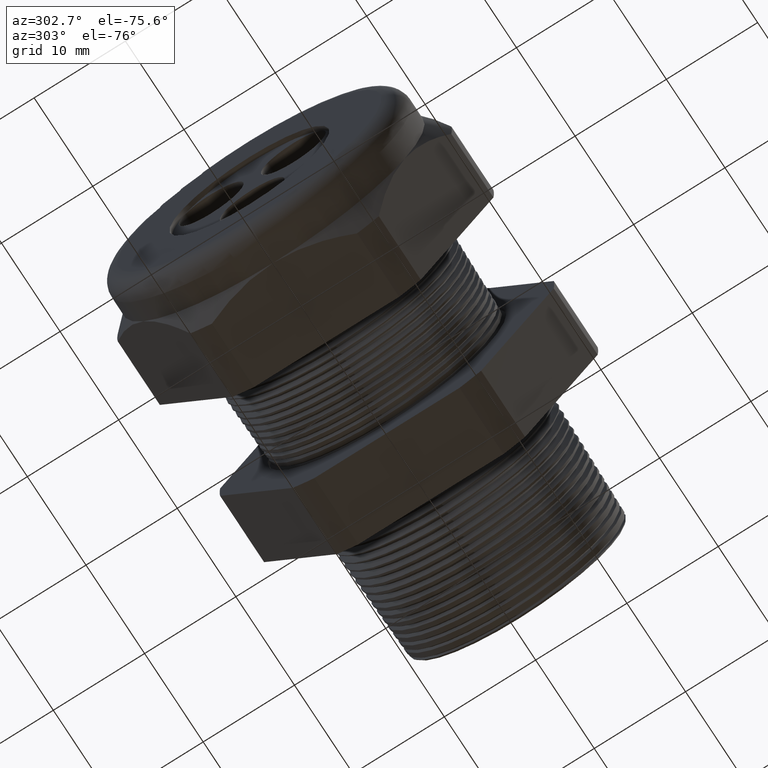
[diagram: clean part render]
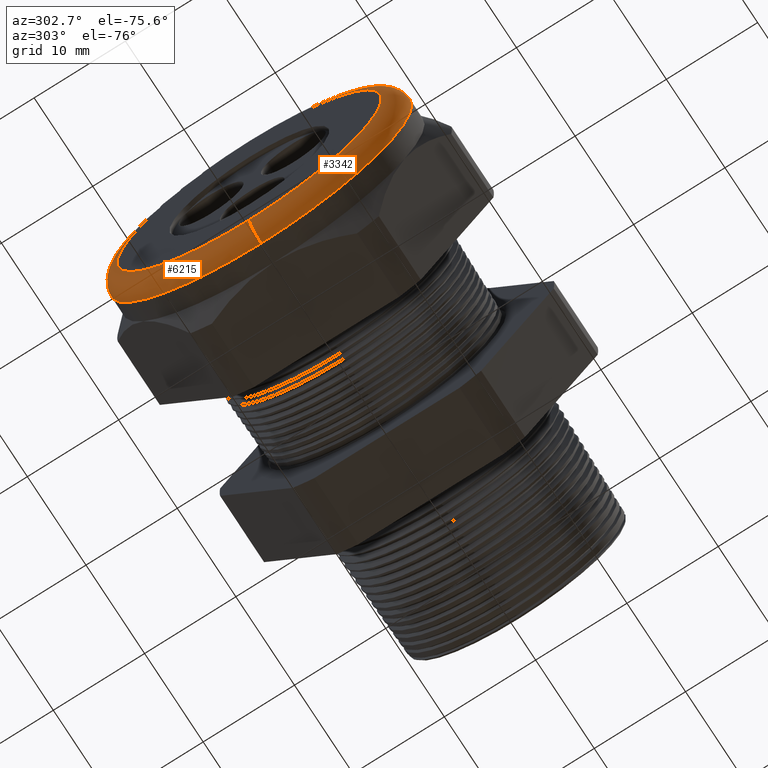
[diagram: same view with one multi-face feature highlighted, each face labeled with its STEP entity id]
A machine part, auxiliary view. The highlighted faces form ONE feature: a constant-radius fillet chain: 2 tangent blend faces with common blend radius 2.032 mm. The faces share edges in the B-rep.
Their STEP definitions:
[1] entity #6215 (Torus):
#2005 = DIRECTION ( 'NONE',  ( 0.0000000000000000000, 0.0000000000000000000, 1.000000000000000000 ) ) ;
#2006 = DIRECTION ( 'NONE',  ( -1.000000000000000000, 0.0000000000000000000, 0.0000000000000000000 ) ) ;
#2007 = CARTESIAN_POINT ( 'NONE',  ( -1.450000000000000400, 0.0000000000000000000, 0.0000000000000000000 ) ) ;
#2008 = AXIS2_PLACEMENT_3D ( 'NONE', #2007, #2006, #2005 ) ;
#2009 = TOROIDAL_SURFACE ( 'NONE', #2008, 0.5700000000000001700, 0.08000000000000000200 ) ;
#2010 = FACE_OUTER_BOUND ( 'NONE', #6216, .T. ) ;
#2011 = DIRECTION ( 'NONE',  ( 0.0000000000000000000, 0.0000000000000000000, 1.000000000000000000 ) ) ;
#2012 = DIRECTION ( 'NONE',  ( 1.000000000000000000, 0.0000000000000000000, 0.0000000000000000000 ) ) ;
#2013 = CARTESIAN_POINT ( 'NONE',  ( -1.450000000000000400, 0.0000000000000000000, 0.0000000000000000000 ) ) ;
#2014 = AXIS2_PLACEMENT_3D ( 'NONE', #2013, #2012, #2011 ) ;
#2015 = CIRCLE ( 'NONE', #2014, 0.6500000000000001300 ) ;
#2016 = CARTESIAN_POINT ( 'NONE',  ( -1.450000000000000400, 0.0000000000000000000, -0.6500000000000001300 ) ) ;
#2017 = CARTESIAN_POINT ( 'NONE',  ( -1.450000000000000400, 7.960204194457797900E-017, 0.6500000000000001300 ) ) ;
#2074 = CARTESIAN_POINT ( 'NONE',  ( -1.530000000000000200, 7.470345474798856500E-017, -0.5700000000000001700 ) ) ;
#2106 = DIRECTION ( 'NONE',  ( 0.0000000000000000000, 0.0000000000000000000, 1.000000000000000000 ) ) ;
#2107 = DIRECTION ( 'NONE',  ( -1.000000000000000000, 0.0000000000000000000, 0.0000000000000000000 ) ) ;
#2108 = CARTESIAN_POINT ( 'NONE',  ( -1.530000000000000200, 0.0000000000000000000, 0.0000000000000000000 ) ) ;
#2109 = AXIS2_PLACEMENT_3D ( 'NONE', #2108, #2107, #2106 ) ;
#2110 = CIRCLE ( 'NONE', #2109, 0.5700000000000001700 ) ;
#2115 = DIRECTION ( 'NONE',  ( 0.0000000000000000000, 0.0000000000000000000, -1.000000000000000000 ) ) ;
#2116 = DIRECTION ( 'NONE',  ( 0.0000000000000000000, -1.000000000000000000, 0.0000000000000000000 ) ) ;
#2117 = CARTESIAN_POINT ( 'NONE',  ( -1.450000000000000400, 0.0000000000000000000, 0.5700000000000001700 ) ) ;
#2118 = AXIS2_PLACEMENT_3D ( 'NONE', #2117, #2116, #2115 ) ;
#2119 = CIRCLE ( 'NONE', #2118, 0.07999999999999996000 ) ;
#2120 = CARTESIAN_POINT ( 'NONE',  ( -1.530000000000000200, 0.0000000000000000000, 0.5700000000000001700 ) ) ;
#2157 = DIRECTION ( 'NONE',  ( 0.0000000000000000000, -1.224646799147353900E-016, 1.000000000000000000 ) ) ;
#2158 = DIRECTION ( 'NONE',  ( 0.0000000000000000000, 1.000000000000000000, 1.224646799147353200E-016 ) ) ;
#2159 = CARTESIAN_POINT ( 'NONE',  ( -1.450000000000000400, 6.980486755139915100E-017, -0.5700000000000001700 ) ) ;
#2160 = AXIS2_PLACEMENT_3D ( 'NONE', #2159, #2158, #2157 ) ;
#2161 = CIRCLE ( 'NONE', #2160, 0.07999999999999996000 ) ;
#6212 = VERTEX_POINT ( 'NONE', #2017 ) ;
#6213 = VERTEX_POINT ( 'NONE', #2016 ) ;
#6214 = EDGE_CURVE ( 'NONE', #6213, #6212, #2015, .T. ) ;
#6215 = ADVANCED_FACE ( 'NONE', ( #2010 ), #2009, .T. ) ;
#6216 = EDGE_LOOP ( 'NONE', ( #6219, #6260, #6255, #6254 ) ) ;
#6219 = ORIENTED_EDGE ( 'NONE', *, *, #6214, .F. ) ;
#6244 = VERTEX_POINT ( 'NONE', #2074 ) ;
#6252 = VERTEX_POINT ( 'NONE', #2120 ) ;
#6253 = EDGE_CURVE ( 'NONE', #6212, #6252, #2119, .T. ) ;
#6254 = ORIENTED_EDGE ( 'NONE', *, *, #6253, .F. ) ;
#6255 = ORIENTED_EDGE ( 'NONE', *, *, #6257, .F. ) ;
#6257 = EDGE_CURVE ( 'NONE', #6252, #6244, #2110, .T. ) ;
#6260 = ORIENTED_EDGE ( 'NONE', *, *, #6262, .T. ) ;
#6262 = EDGE_CURVE ( 'NONE', #6213, #6244, #2161, .T. ) ;
[2] entity #3342 (Torus):
#2016 = CARTESIAN_POINT ( 'NONE',  ( -1.450000000000000400, 0.0000000000000000000, -0.6500000000000001300 ) ) ;
#2017 = CARTESIAN_POINT ( 'NONE',  ( -1.450000000000000400, 7.960204194457797900E-017, 0.6500000000000001300 ) ) ;
#2074 = CARTESIAN_POINT ( 'NONE',  ( -1.530000000000000200, 7.470345474798856500E-017, -0.5700000000000001700 ) ) ;
#2115 = DIRECTION ( 'NONE',  ( 0.0000000000000000000, 0.0000000000000000000, -1.000000000000000000 ) ) ;
#2116 = DIRECTION ( 'NONE',  ( 0.0000000000000000000, -1.000000000000000000, 0.0000000000000000000 ) ) ;
#2117 = CARTESIAN_POINT ( 'NONE',  ( -1.450000000000000400, 0.0000000000000000000, 0.5700000000000001700 ) ) ;
#2118 = AXIS2_PLACEMENT_3D ( 'NONE', #2117, #2116, #2115 ) ;
#2119 = CIRCLE ( 'NONE', #2118, 0.07999999999999996000 ) ;
#2120 = CARTESIAN_POINT ( 'NONE',  ( -1.530000000000000200, 0.0000000000000000000, 0.5700000000000001700 ) ) ;
#2157 = DIRECTION ( 'NONE',  ( 0.0000000000000000000, -1.224646799147353900E-016, 1.000000000000000000 ) ) ;
#2158 = DIRECTION ( 'NONE',  ( 0.0000000000000000000, 1.000000000000000000, 1.224646799147353200E-016 ) ) ;
#2159 = CARTESIAN_POINT ( 'NONE',  ( -1.450000000000000400, 6.980486755139915100E-017, -0.5700000000000001700 ) ) ;
#2160 = AXIS2_PLACEMENT_3D ( 'NONE', #2159, #2158, #2157 ) ;
#2161 = CIRCLE ( 'NONE', #2160, 0.07999999999999996000 ) ;
#3169 = EDGE_CURVE ( 'NONE', #6212, #6213, #5848, .T. ) ;
#3187 = EDGE_CURVE ( 'NONE', #6244, #6252, #5877, .T. ) ;
#3323 = ORIENTED_EDGE ( 'NONE', *, *, #6262, .F. ) ;
#3324 = ORIENTED_EDGE ( 'NONE', *, *, #3169, .F. ) ;
#3325 = ORIENTED_EDGE ( 'NONE', *, *, #6253, .T. ) ;
#3326 = ORIENTED_EDGE ( 'NONE', *, *, #3187, .F. ) ;
#3342 = ADVANCED_FACE ( 'NONE', ( #6110 ), #6109, .T. ) ;
#3343 = EDGE_LOOP ( 'NONE', ( #3323, #3324, #3325, #3326 ) ) ;
#5845 = DIRECTION ( 'NONE',  ( 0.0000000000000000000, 0.0000000000000000000, 1.000000000000000000 ) ) ;
#5846 = DIRECTION ( 'NONE',  ( 1.000000000000000000, 0.0000000000000000000, 0.0000000000000000000 ) ) ;
#5847 = AXIS2_PLACEMENT_3D ( 'NONE', #5853, #5846, #5845 ) ;
#5848 = CIRCLE ( 'NONE', #5847, 0.6500000000000001300 ) ;
#5853 = CARTESIAN_POINT ( 'NONE',  ( -1.450000000000000400, 0.0000000000000000000, 0.0000000000000000000 ) ) ;
#5873 = DIRECTION ( 'NONE',  ( 0.0000000000000000000, 0.0000000000000000000, 1.000000000000000000 ) ) ;
#5874 = DIRECTION ( 'NONE',  ( -1.000000000000000000, 0.0000000000000000000, 0.0000000000000000000 ) ) ;
#5875 = CARTESIAN_POINT ( 'NONE',  ( -1.530000000000000200, 0.0000000000000000000, 0.0000000000000000000 ) ) ;
#5876 = AXIS2_PLACEMENT_3D ( 'NONE', #5875, #5874, #5873 ) ;
#5877 = CIRCLE ( 'NONE', #5876, 0.5700000000000001700 ) ;
#6106 = DIRECTION ( 'NONE',  ( 0.0000000000000000000, 0.0000000000000000000, 1.000000000000000000 ) ) ;
#6107 = DIRECTION ( 'NONE',  ( -1.000000000000000000, 0.0000000000000000000, 0.0000000000000000000 ) ) ;
#6108 = AXIS2_PLACEMENT_3D ( 'NONE', #6113, #6107, #6106 ) ;
#6109 = TOROIDAL_SURFACE ( 'NONE', #6108, 0.5700000000000001700, 0.08000000000000000200 ) ;
#6110 = FACE_OUTER_BOUND ( 'NONE', #3343, .T. ) ;
#6113 = CARTESIAN_POINT ( 'NONE',  ( -1.450000000000000400, 0.0000000000000000000, 0.0000000000000000000 ) ) ;
#6212 = VERTEX_POINT ( 'NONE', #2017 ) ;
#6213 = VERTEX_POINT ( 'NONE', #2016 ) ;
#6244 = VERTEX_POINT ( 'NONE', #2074 ) ;
#6252 = VERTEX_POINT ( 'NONE', #2120 ) ;
#6253 = EDGE_CURVE ( 'NONE', #6212, #6252, #2119, .T. ) ;
#6262 = EDGE_CURVE ( 'NONE', #6213, #6244, #2161, .T. ) ;